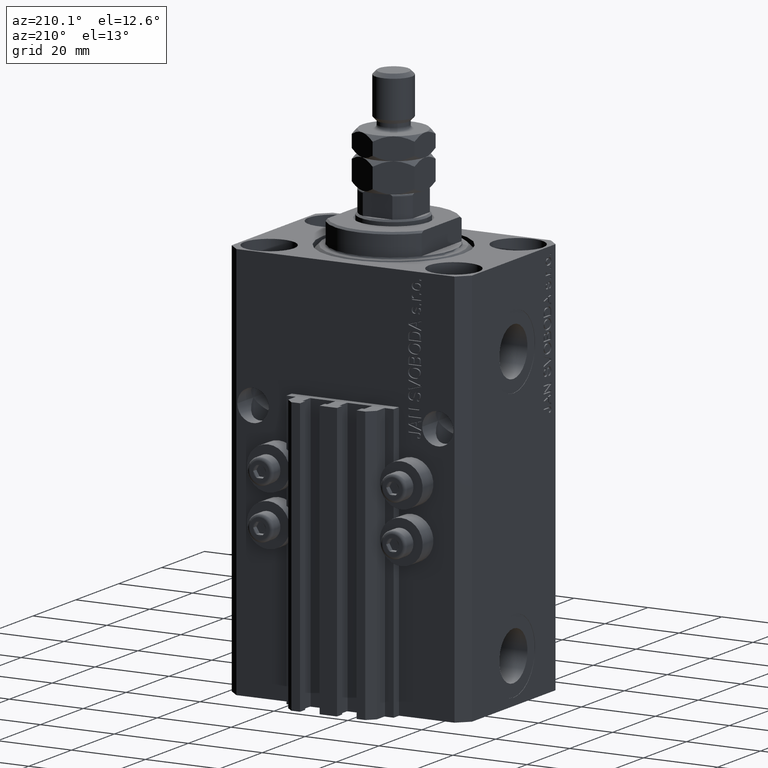
[diagram: clean part render]
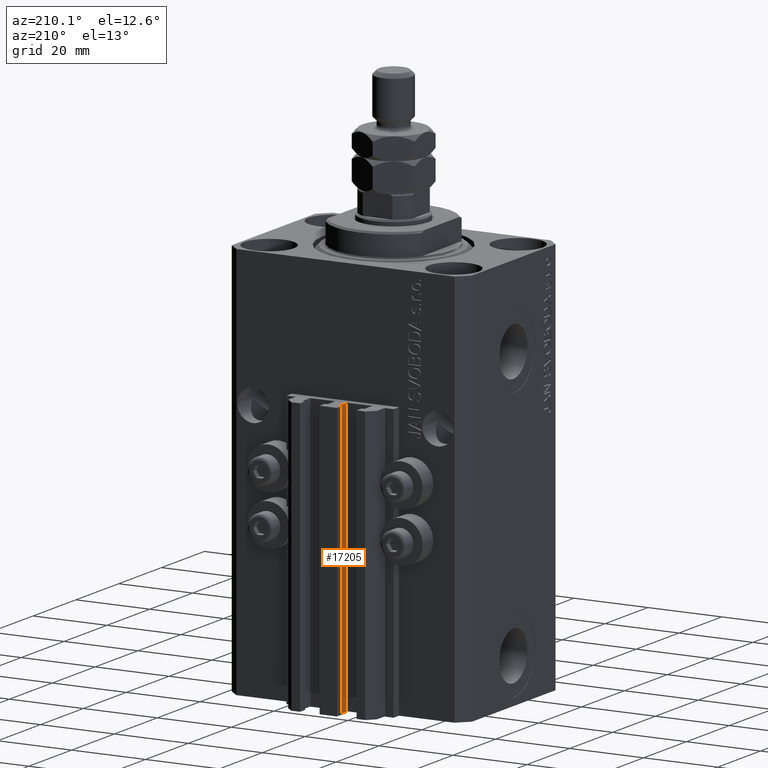
[diagram: same view with one face highlighted and labeled with its STEP entity id]
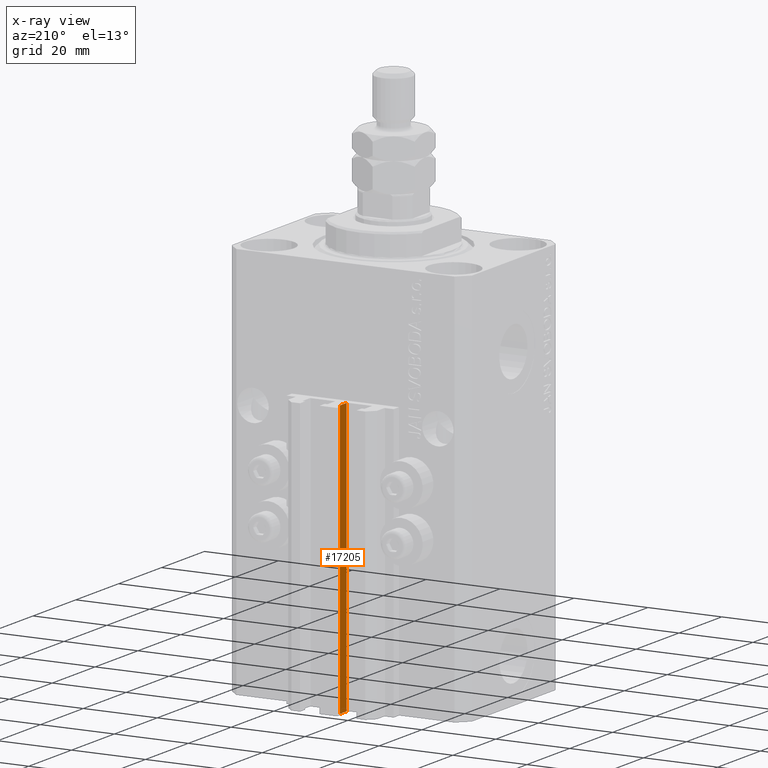
[diagram: x-ray of the same camera — body ghosted, the highlighted face saturated]
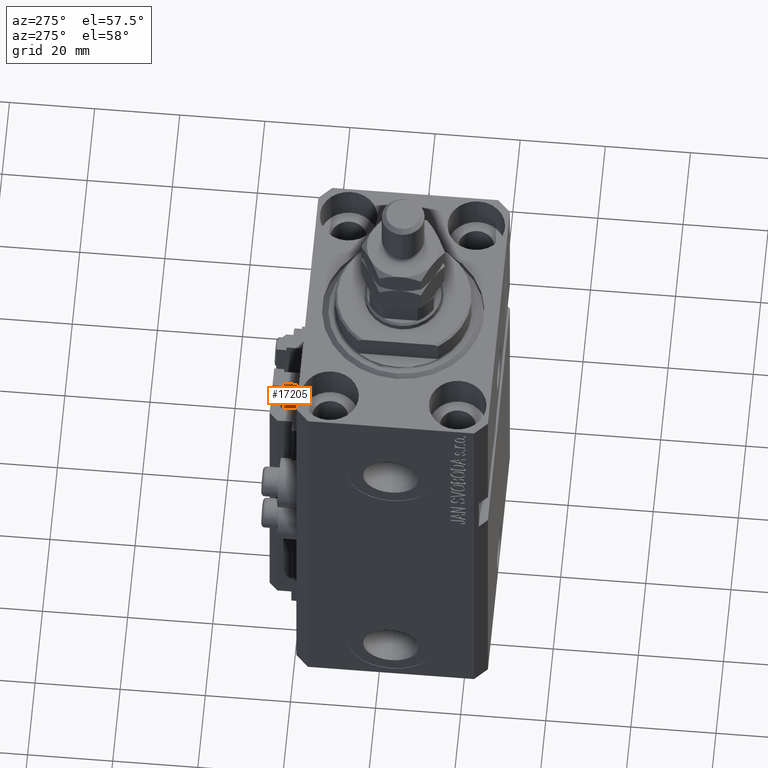
[diagram: same view with one face highlighted and labeled with its STEP entity id]
A machine part, auxiliary view. The second image highlights one B-rep face of the part: STEP entity #17205.
The next image is the same camera in x-ray: the body ghosted, the highlighted face saturated — about 0% of this face is hidden behind the body in this view.
A second angle (auxiliary view) of the same face is appended — the face is thin or edge-on in the first view.
In plain terms, the highlighted planar face has unit normal (-1, 0, 0).
Its self-contained STEP definition (entity closure, byte-faithful):
#1437 = FACE_OUTER_BOUND ( 'NONE', #39676, .T. ) ;
#1667 = CARTESIAN_POINT ( 'NONE',  ( -1.600000000000000533, 27.89999999999950120, -107.0000000000000000 ) ) ;
#4080 = CARTESIAN_POINT ( 'NONE',  ( -1.600000000000000533, 27.89999999999950120, -107.0000000000000000 ) ) ;
#6247 = CARTESIAN_POINT ( 'NONE',  ( -1.600000000000000755, 24.69999999999949480, -107.0000000000000000 ) ) ;
#7586 = CARTESIAN_POINT ( 'NONE',  ( -1.600000000000000755, 24.69999999999949480, -33.00000000000000000 ) ) ;
#11188 = VERTEX_POINT ( 'NONE', #7586 ) ;
#12524 = EDGE_CURVE ( 'NONE', #40412, #16823, #45939, .T. ) ;
#15196 = VECTOR ( 'NONE', #19107, 1000.000000000000000 ) ;
#16223 = EDGE_CURVE ( 'NONE', #23578, #11188, #48030, .T. ) ;
#16714 = PLANE ( 'NONE',  #42078 ) ;
#16823 = VERTEX_POINT ( 'NONE', #21489 ) ;
#17205 = ADVANCED_FACE ( 'NONE', ( #1437 ), #16714, .T. ) ;
#19107 = DIRECTION ( 'NONE',  ( -6.776263578034385456E-17, -1.000000000000000000, 0.000000000000000000 ) ) ;
#20412 = ORIENTED_EDGE ( 'NONE', *, *, #24751, .F. ) ;
#21489 = CARTESIAN_POINT ( 'NONE',  ( -1.600000000000000755, 24.69999999999949480, -107.0000000000000000 ) ) ;
#21924 = VECTOR ( 'NONE', #35071, 1000.000000000000000 ) ;
#22309 = CARTESIAN_POINT ( 'NONE',  ( -1.600000000000003197, 27.89999999999950120, -33.00000000000000000 ) ) ;
#23578 = VERTEX_POINT ( 'NONE', #22309 ) ;
#24751 = EDGE_CURVE ( 'NONE', #40412, #23578, #32337, .T. ) ;
#24953 = LINE ( 'NONE', #6247, #21924 ) ;
#28378 = ORIENTED_EDGE ( 'NONE', *, *, #30634, .T. ) ;
#28578 = DIRECTION ( 'NONE',  ( -6.776263578034385456E-17, -1.000000000000000000, 0.000000000000000000 ) ) ;
#30634 = EDGE_CURVE ( 'NONE', #16823, #11188, #24953, .T. ) ;
#30771 = DIRECTION ( 'NONE',  ( -6.776263578034385456E-17, -1.000000000000000000, 0.000000000000000000 ) ) ;
#31859 = CARTESIAN_POINT ( 'NONE',  ( -1.600000000000003197, 27.89999999999950120, -107.0000000000000000 ) ) ;
#32337 = LINE ( 'NONE', #31859, #47757 ) ;
#32544 = ORIENTED_EDGE ( 'NONE', *, *, #16223, .F. ) ;
#32834 = DIRECTION ( 'NONE',  ( 0.000000000000000000, 0.000000000000000000, 1.000000000000000000 ) ) ;
#35071 = DIRECTION ( 'NONE',  ( 0.000000000000000000, 0.000000000000000000, 1.000000000000000000 ) ) ;
#36281 = ORIENTED_EDGE ( 'NONE', *, *, #12524, .T. ) ;
#39648 = CARTESIAN_POINT ( 'NONE',  ( -1.600000000000000533, 27.89999999999950120, -33.00000000000000000 ) ) ;
#39676 = EDGE_LOOP ( 'NONE', ( #32544, #20412, #36281, #28378 ) ) ;
#40412 = VERTEX_POINT ( 'NONE', #43234 ) ;
#42078 = AXIS2_PLACEMENT_3D ( 'NONE', #1667, #46758, #30771 ) ;
#43234 = CARTESIAN_POINT ( 'NONE',  ( -1.600000000000003197, 27.89999999999950120, -107.0000000000000000 ) ) ;
#45939 = LINE ( 'NONE', #4080, #15196 ) ;
#46758 = DIRECTION ( 'NONE',  ( -1.000000000000000000, 6.776263578034385456E-17, 0.000000000000000000 ) ) ;
#47757 = VECTOR ( 'NONE', #32834, 1000.000000000000000 ) ;
#48030 = LINE ( 'NONE', #39648, #48346 ) ;
#48346 = VECTOR ( 'NONE', #28578, 1000.000000000000000 ) ;